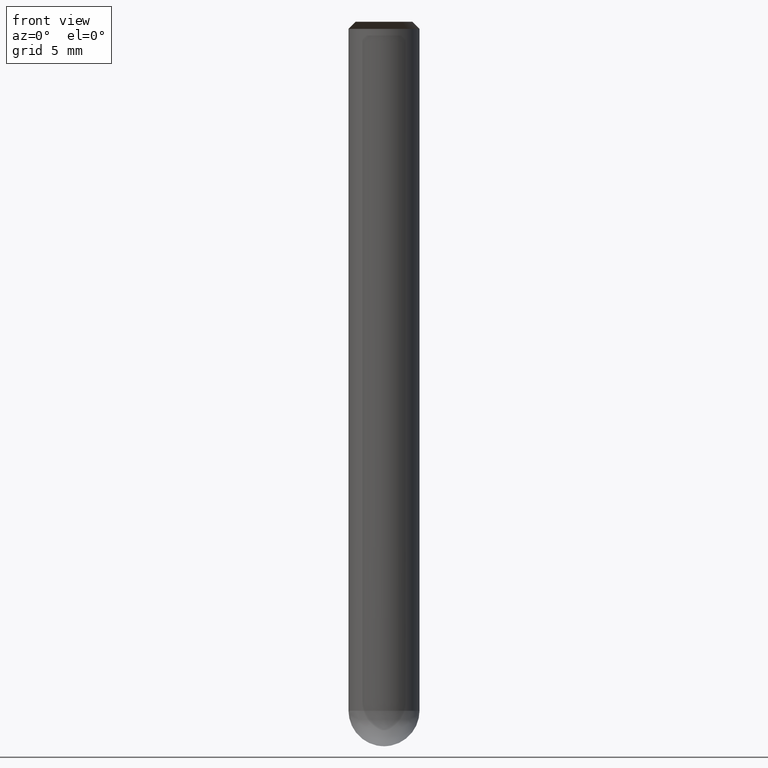
[diagram: clean part render]
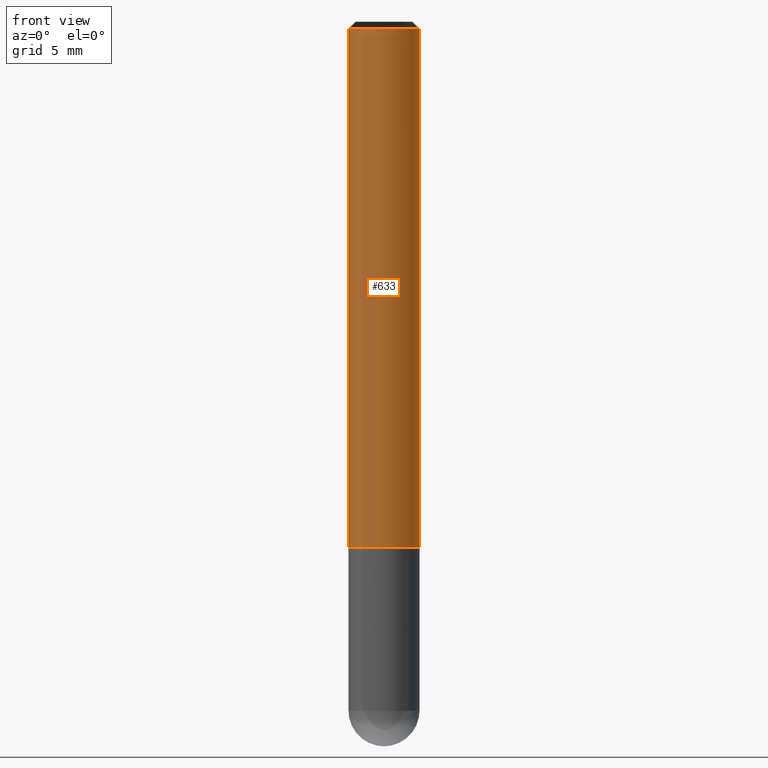
[diagram: same view with one face highlighted and labeled with its STEP entity id]
A machine part, front view. The second image highlights one B-rep face of the part: STEP entity #633.
In plain terms, the highlighted face is a freeform B-spline surface patch.
Its self-contained STEP definition (entity closure, byte-faithful):
#348=CARTESIAN_POINT('',(2.5,0.0,0.0));
#352=CARTESIAN_POINT('',(-2.5,0.0,0.0));
#353=CARTESIAN_POINT('',(2.5,0.0,36.5));
#357=CARTESIAN_POINT('',(-2.5,0.0,36.5));
#364=CARTESIAN_POINT('',(-2.5,-2.5,0.0));
#365=CARTESIAN_POINT('',(0.0,-2.5,0.0));
#366=CARTESIAN_POINT('',(2.5,-2.5,0.0));
#367=CARTESIAN_POINT('',(-2.5,-2.5,36.5));
#368=CARTESIAN_POINT('',(0.0,-2.5,36.5));
#369=CARTESIAN_POINT('',(2.5,-2.5,36.5));
#614=(
BOUNDED_SURFACE()
B_SPLINE_SURFACE(1,2,(
(#352,#364,#365,#366,#348),
(#357,#367,#368,#369,#353)
), .UNSPECIFIED.,.F.,.F.,.F.)
B_SPLINE_SURFACE_WITH_KNOTS((2,2),(3,2,3),(
0.0,1.0),(
0.0,0.5,1.0), .UNSPECIFIED.)
GEOMETRIC_REPRESENTATION_ITEM()
RATIONAL_B_SPLINE_SURFACE(((1.0,0.707106781187,1.0,0.707106781187,1.0),
(1.0,0.707106781187,1.0,0.707106781187,1.0)
))
REPRESENTATION_ITEM('')
SURFACE()
);
#615=(
BOUNDED_CURVE()
B_SPLINE_CURVE(2,(#348,#366,#365,#364,#352),.UNSPECIFIED.,.F.,.F.)
B_SPLINE_CURVE_WITH_KNOTS((3,2,3),
(0.0,0.5,1.0),.UNSPECIFIED.)
CURVE()
GEOMETRIC_REPRESENTATION_ITEM()
RATIONAL_B_SPLINE_CURVE((1.0,0.707106781187,1.0,0.707106781187,1.0))
REPRESENTATION_ITEM('')
);
#616=(
BOUNDED_CURVE()
B_SPLINE_CURVE(1,(#352,#357),.UNSPECIFIED.,.F.,.F.)
B_SPLINE_CURVE_WITH_KNOTS((2,2),
(0.0,1.0),.UNSPECIFIED.)
CURVE()
GEOMETRIC_REPRESENTATION_ITEM()
RATIONAL_B_SPLINE_CURVE((1.0,1.0))
REPRESENTATION_ITEM('')
);
#617=(
BOUNDED_CURVE()
B_SPLINE_CURVE(2,(#357,#367,#368,#369,#353),.UNSPECIFIED.,.F.,.F.)
B_SPLINE_CURVE_WITH_KNOTS((3,2,3),
(0.0,0.5,1.0),.UNSPECIFIED.)
CURVE()
GEOMETRIC_REPRESENTATION_ITEM()
RATIONAL_B_SPLINE_CURVE((1.0,0.707106781187,1.0,0.707106781187,1.0))
REPRESENTATION_ITEM('')
);
#618=(
BOUNDED_CURVE()
B_SPLINE_CURVE(1,(#353,#348),.UNSPECIFIED.,.F.,.F.)
B_SPLINE_CURVE_WITH_KNOTS((2,2),
(0.0,1.0),.UNSPECIFIED.)
CURVE()
GEOMETRIC_REPRESENTATION_ITEM()
RATIONAL_B_SPLINE_CURVE((1.0,1.0))
REPRESENTATION_ITEM('')
);
#619=VERTEX_POINT('',#348);
#620=VERTEX_POINT('',#352);
#621=VERTEX_POINT('',#353);
#622=VERTEX_POINT('',#357);
#623=EDGE_CURVE('',#619,#620,#615,.T.);
#624=EDGE_CURVE('',#620,#622,#616,.T.);
#625=EDGE_CURVE('',#622,#621,#617,.T.);
#626=EDGE_CURVE('',#621,#619,#618,.T.);
#627=ORIENTED_EDGE('',*,*,#623,.T.);
#628=ORIENTED_EDGE('',*,*,#624,.T.);
#629=ORIENTED_EDGE('',*,*,#625,.T.);
#630=ORIENTED_EDGE('',*,*,#626,.T.);
#631=EDGE_LOOP('',(#627,#628,#629,#630));
#632=FACE_OUTER_BOUND('',#631,.T.);
#633=ADVANCED_FACE('',(#632),#614,.T.);